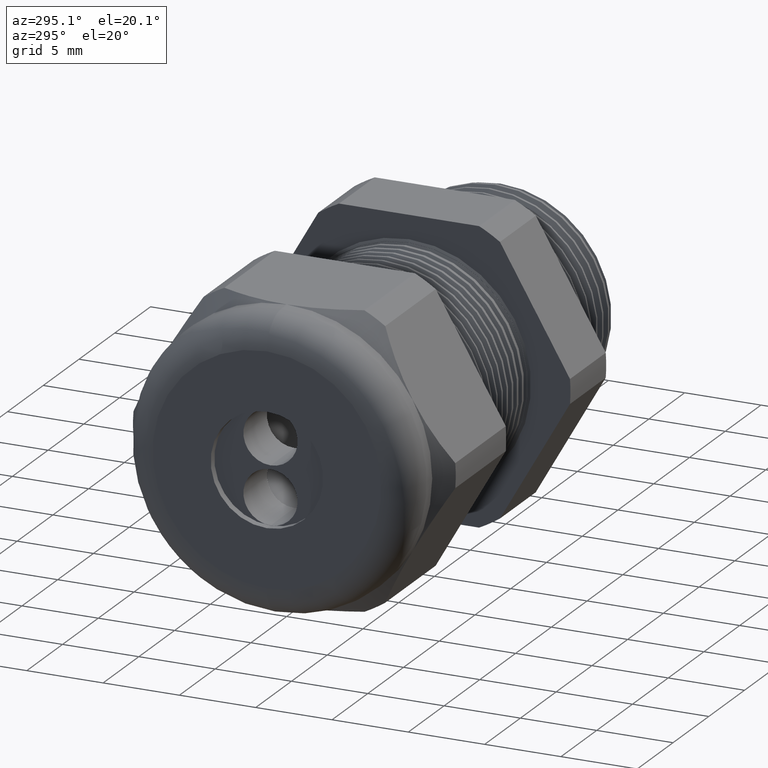
[diagram: clean part render]
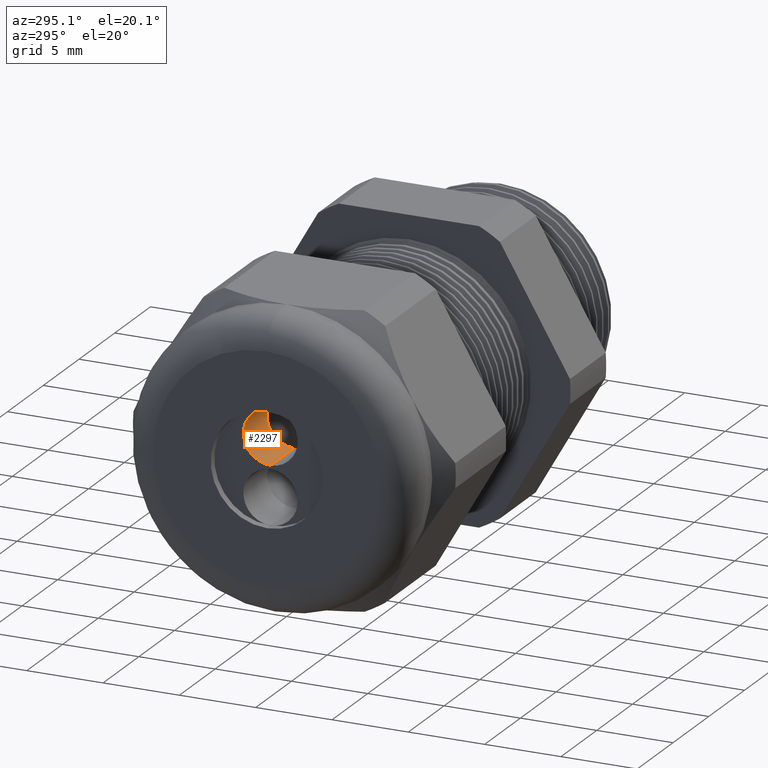
[diagram: same view with one face highlighted and labeled with its STEP entity id]
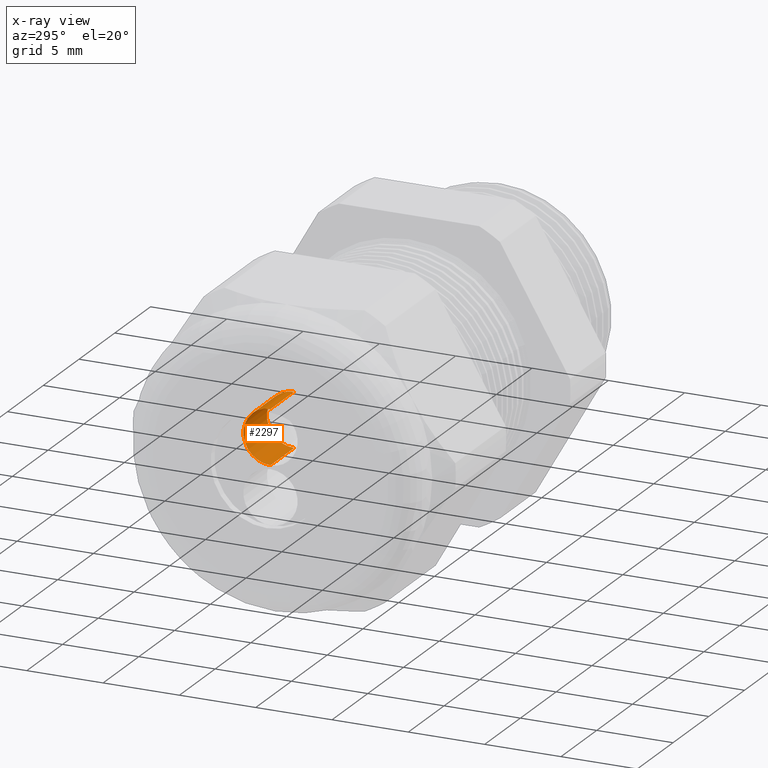
[diagram: x-ray of the same camera — body ghosted, the highlighted face saturated]
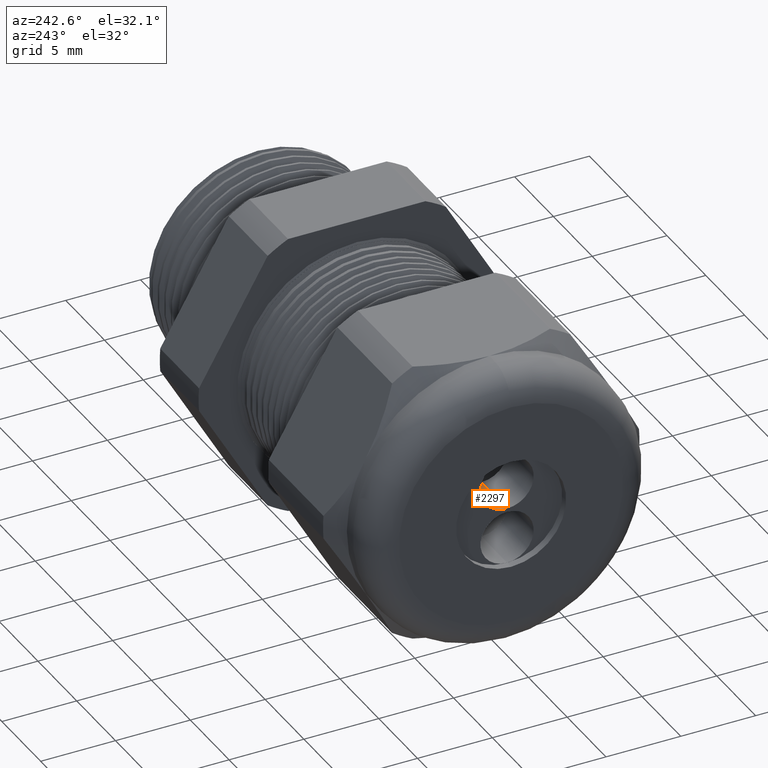
[diagram: same view with one face highlighted and labeled with its STEP entity id]
A machine part, auxiliary view. The second image highlights one B-rep face of the part: STEP entity #2297.
The next image is the same camera in x-ray: the body ghosted, the highlighted face saturated — about 0% of this face is hidden behind the body in this view.
A second angle (auxiliary view) of the same face is appended — the face is thin or edge-on in the first view.
In plain terms, the highlighted cylindrical surface (edge-blend (fillet) strip) has radius 1.778 mm, axis along (-1, 0, 0).
Its self-contained STEP definition (entity closure, byte-faithful):
#11 = CARTESIAN_POINT ( 'NONE',  ( -1.139999999999999900, 5.303398010782174400E-016, 0.004719999999999976800 ) ) ;
#12 = CARTESIAN_POINT ( 'NONE',  ( -1.139999999999999900, 5.217672734841859200E-016, 0.1447199999999999900 ) ) ;
#23 = DIRECTION ( 'NONE',  ( -1.000000000000000000, 0.0000000000000000000, 0.0000000000000000000 ) ) ;
#24 = VECTOR ( 'NONE', #23, 39.37007874015748100 ) ;
#25 = CARTESIAN_POINT ( 'NONE',  ( -1.139999999999999900, 5.303398010782174400E-016, 0.004719999999999976800 ) ) ;
#26 = LINE ( 'NONE', #25, #24 ) ;
#121 = LINE ( 'NONE', #184, #183 ) ;
#138 = CARTESIAN_POINT ( 'NONE',  ( -1.269999999999999800, 5.217672734841859200E-016, 0.1447199999999999900 ) ) ;
#182 = DIRECTION ( 'NONE',  ( -1.000000000000000000, 0.0000000000000000000, 0.0000000000000000000 ) ) ;
#183 = VECTOR ( 'NONE', #182, 39.37007874015748100 ) ;
#184 = CARTESIAN_POINT ( 'NONE',  ( -1.139999999999999900, 5.217672734841859200E-016, 0.1447199999999999900 ) ) ;
#205 = DIRECTION ( 'NONE',  ( 0.0000000000000000000, -6.982966722218763300E-015, -1.000000000000000000 ) ) ;
#206 = DIRECTION ( 'NONE',  ( -1.000000000000000000, 0.0000000000000000000, 0.0000000000000000000 ) ) ;
#207 = CARTESIAN_POINT ( 'NONE',  ( -1.139999999999999900, 5.217672734841859200E-016, 0.07471999999999998100 ) ) ;
#208 = AXIS2_PLACEMENT_3D ( 'NONE', #207, #206, #205 ) ;
#209 = CIRCLE ( 'NONE', #208, 0.07000000000000000700 ) ;
#260 = DIRECTION ( 'NONE',  ( 0.0000000000000000000, -6.982966722218763300E-015, -1.000000000000000000 ) ) ;
#261 = DIRECTION ( 'NONE',  ( -1.000000000000000000, 0.0000000000000000000, 0.0000000000000000000 ) ) ;
#262 = CARTESIAN_POINT ( 'NONE',  ( -1.269999999999999800, 5.217672734841859200E-016, 0.07471999999999998100 ) ) ;
#263 = AXIS2_PLACEMENT_3D ( 'NONE', #262, #261, #260 ) ;
#264 = CIRCLE ( 'NONE', #263, 0.07000000000000000700 ) ;
#370 = DIRECTION ( 'NONE',  ( 0.0000000000000000000, 0.0000000000000000000, 1.000000000000000000 ) ) ;
#371 = DIRECTION ( 'NONE',  ( -1.000000000000000000, 0.0000000000000000000, 0.0000000000000000000 ) ) ;
#372 = AXIS2_PLACEMENT_3D ( 'NONE', #375, #371, #370 ) ;
#373 = CYLINDRICAL_SURFACE ( 'NONE', #372, 0.07000000000000000700 ) ;
#375 = CARTESIAN_POINT ( 'NONE',  ( -1.139999999999999900, 5.217672734841859200E-016, 0.07471999999999998100 ) ) ;
#376 = FACE_OUTER_BOUND ( 'NONE', #2227, .T. ) ;
#2105 = VERTEX_POINT ( 'NONE', #4933 ) ;
#2107 = EDGE_CURVE ( 'NONE', #2114, #2105, #26, .T. ) ;
#2113 = VERTEX_POINT ( 'NONE', #12 ) ;
#2114 = VERTEX_POINT ( 'NONE', #11 ) ;
#2175 = VERTEX_POINT ( 'NONE', #138 ) ;
#2184 = EDGE_CURVE ( 'NONE', #2113, #2175, #121, .T. ) ;
#2204 = EDGE_CURVE ( 'NONE', #2113, #2114, #209, .T. ) ;
#2227 = EDGE_LOOP ( 'NONE', ( #2239, #2240, #2229, #2230 ) ) ;
#2229 = ORIENTED_EDGE ( 'NONE', *, *, #2184, .T. ) ;
#2230 = ORIENTED_EDGE ( 'NONE', *, *, #2259, .T. ) ;
#2239 = ORIENTED_EDGE ( 'NONE', *, *, #2107, .F. ) ;
#2240 = ORIENTED_EDGE ( 'NONE', *, *, #2204, .F. ) ;
#2259 = EDGE_CURVE ( 'NONE', #2175, #2105, #264, .T. ) ;
#2297 = ADVANCED_FACE ( 'NONE', ( #376 ), #373, .F. ) ;
#4933 = CARTESIAN_POINT ( 'NONE',  ( -1.269999999999999800, 5.303398010782174400E-016, 0.004719999999999976800 ) ) ;